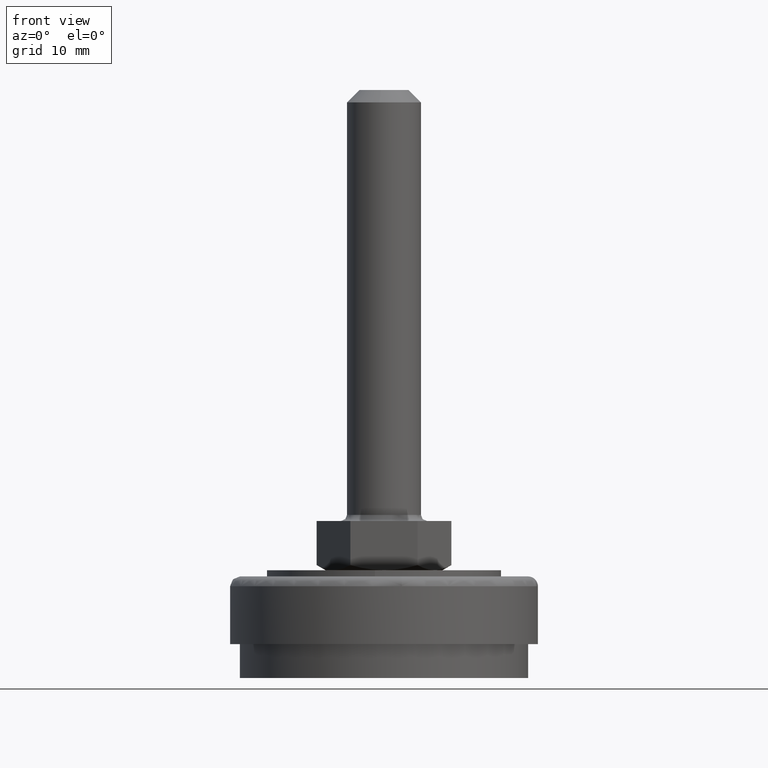
[diagram: clean part render]
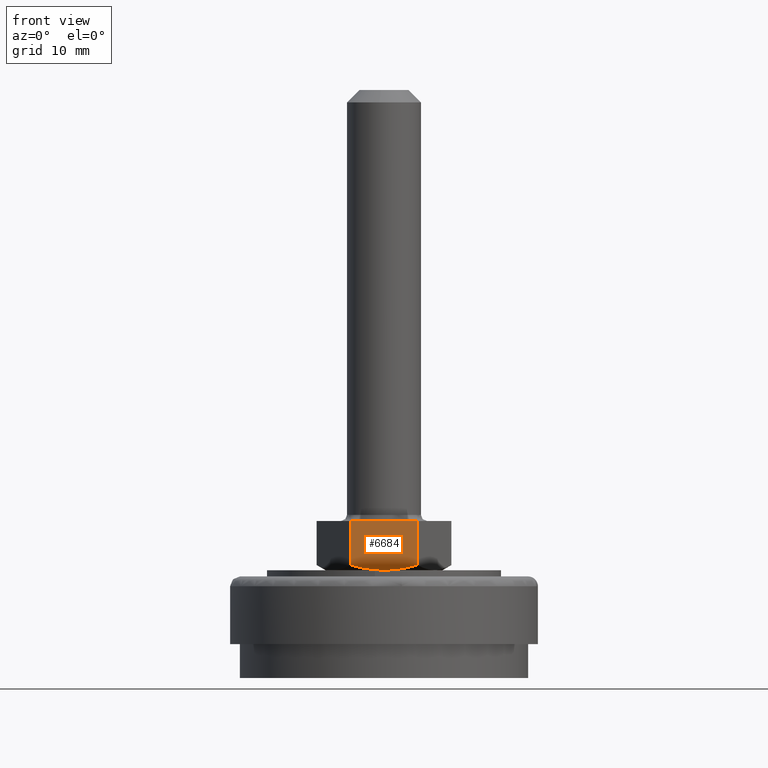
[diagram: same view with one face highlighted and labeled with its STEP entity id]
A machine part, front view. The second image highlights one B-rep face of the part: STEP entity #6684.
In plain terms, the highlighted face is a freeform B-spline surface patch.
Its self-contained STEP definition (entity closure, byte-faithful):
#4905=CARTESIAN_POINT('',(5.465172000000000,-9.500000000000000,18.354187350868301));
#4906=VERTEX_POINT('',#4905);
#4926=CARTESIAN_POINT('',(-5.465172000000000,-9.500000000000000,18.354187350868301));
#4927=VERTEX_POINT('',#4926);
#4928=CARTESIAN_POINT('',(5.465171999999999,-9.500000000000000,18.354187350868290));
#4929=CARTESIAN_POINT('',(4.581653261476829,-9.500000000000000,18.099823883699379));
#4930=CARTESIAN_POINT('',(3.686578592802144,-9.500000000000002,17.888082183425190));
#4931=CARTESIAN_POINT('',(2.546019492062395,-9.499999999999998,17.703499369593491));
#4932=CARTESIAN_POINT('',(2.202216714395779,-9.499999999999998,17.654155075138881));
#4933=CARTESIAN_POINT('',(1.855752177983315,-9.500000000000000,17.614628152311500));
#4934=CARTESIAN_POINT('',(1.624162309309661,-9.499999999999996,17.590539684866560));
#4935=CARTESIAN_POINT('',(1.507932306769979,-9.500000000000002,17.579616842546528));
#4936=CARTESIAN_POINT('',(0.926873725777616,-9.500000000000000,17.530989921539870));
#4937=CARTESIAN_POINT('',(0.463496751950627,-9.500000000000002,17.511393242405351));
#4938=CARTESIAN_POINT('',(-0.460279850194721,-9.500000000000000,17.511302941829200));
#4939=CARTESIAN_POINT('',(-0.920680058911220,-9.500000000000002,17.530801697710931));
#4940=CARTESIAN_POINT('',(-1.838650103084247,-9.500000000000000,17.606972002674318));
#4941=CARTESIAN_POINT('',(-2.296222012800841,-9.500000000000000,17.663616309398360));
#4942=CARTESIAN_POINT('',(-3.208827118740283,-9.500000000000000,17.810247193645679));
#4943=CARTESIAN_POINT('',(-3.663886927737577,-9.499999999999998,17.900207822661368));
#4944=CARTESIAN_POINT('',(-4.571735317098357,-9.500000000000000,18.108661149167229));
#4945=CARTESIAN_POINT('',(-5.020497600458879,-9.500000000000000,18.226166385271529));
#4946=CARTESIAN_POINT('',(-5.465172000000000,-9.500000000000000,18.354187350868301));
#4947=B_SPLINE_CURVE_WITH_KNOTS('',3,(#4928,#4929,#4930,#4931,#4932,#4933,#4934,#4935,#4936,#4937,#4938,#4939,#4940,#4941,#4942,#4943,#4944,#4945,#4946),.UNSPECIFIED.,.F.,.U.,(4,2,1,2,2,2,2,2,2,4),(0.0,0.250000000000000,0.312500000000000,0.343750000000000,0.375000000000000,0.500000000000000,0.625000000000000,0.750000000000000,0.875000000000000,1.0),.UNSPECIFIED.);
#4948=EDGE_CURVE('',#4906,#4927,#4947,.T.);
#6585=CARTESIAN_POINT('',(-5.465172000000000,-9.500000000000000,25.500000000000000));
#6586=VERTEX_POINT('',#6585);
#6592=CARTESIAN_POINT('',(5.465172000000000,-9.500000000000000,25.500000000000000));
#6593=VERTEX_POINT('',#6592);
#6594=CARTESIAN_POINT('',(-5.465172000000000,-9.500000000000000,25.500000000000000));
#6595=CARTESIAN_POINT('',(5.465172000000000,-9.500000000000000,25.500000000000000));
#6596=QUASI_UNIFORM_CURVE('',1,(#6594,#6595),.UNSPECIFIED.,.F.,.U.);
#6597=EDGE_CURVE('',#6586,#6593,#6596,.T.);
#6661=CARTESIAN_POINT('',(5.465172000000000,-9.500000000000000,25.500000000000000));
#6662=CARTESIAN_POINT('',(5.465172000000000,-9.500000000000000,18.354187350868301));
#6663=QUASI_UNIFORM_CURVE('',1,(#6661,#6662),.UNSPECIFIED.,.F.,.U.);
#6664=EDGE_CURVE('',#6593,#4906,#6663,.T.);
#6669=CARTESIAN_POINT('',(-6.011142417351509,-9.500000000000000,17.112315612581909));
#6670=CARTESIAN_POINT('',(-6.011142417351509,-9.500000000000000,25.899033329818781));
#6671=CARTESIAN_POINT('',(6.011142124176838,-9.500000000000000,17.112315612581909));
#6672=CARTESIAN_POINT('',(6.011142124176838,-9.500000000000000,25.899033329818781));
#6673=B_SPLINE_SURFACE_WITH_KNOTS('',1,1,((#6669,#6671),(#6670,#6672)),.UNSPECIFIED.,.F.,.F.,.U.,(2,2),(2,2),(0.0,8.786717717236872),(0.0,12.022284541528350),.UNSPECIFIED.);
#6674=ORIENTED_EDGE('',*,*,#4948,.F.);
#6675=ORIENTED_EDGE('',*,*,#6664,.F.);
#6676=ORIENTED_EDGE('',*,*,#6597,.F.);
#6677=CARTESIAN_POINT('',(-5.465172000000000,-9.500000000000000,25.500000000000000));
#6678=CARTESIAN_POINT('',(-5.465172000000000,-9.500000000000000,18.354187350868301));
#6679=QUASI_UNIFORM_CURVE('',1,(#6677,#6678),.UNSPECIFIED.,.F.,.U.);
#6680=EDGE_CURVE('',#6586,#4927,#6679,.T.);
#6681=ORIENTED_EDGE('',*,*,#6680,.T.);
#6682=EDGE_LOOP('',(#6674,#6675,#6676,#6681));
#6683=FACE_OUTER_BOUND('',#6682,.T.);
#6684=ADVANCED_FACE('',(#6683),#6673,.F.);